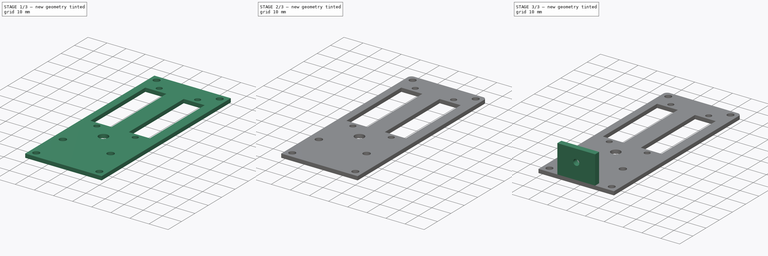
[diagram: build sequence overview — one tinted view per stage of 3, left to right]
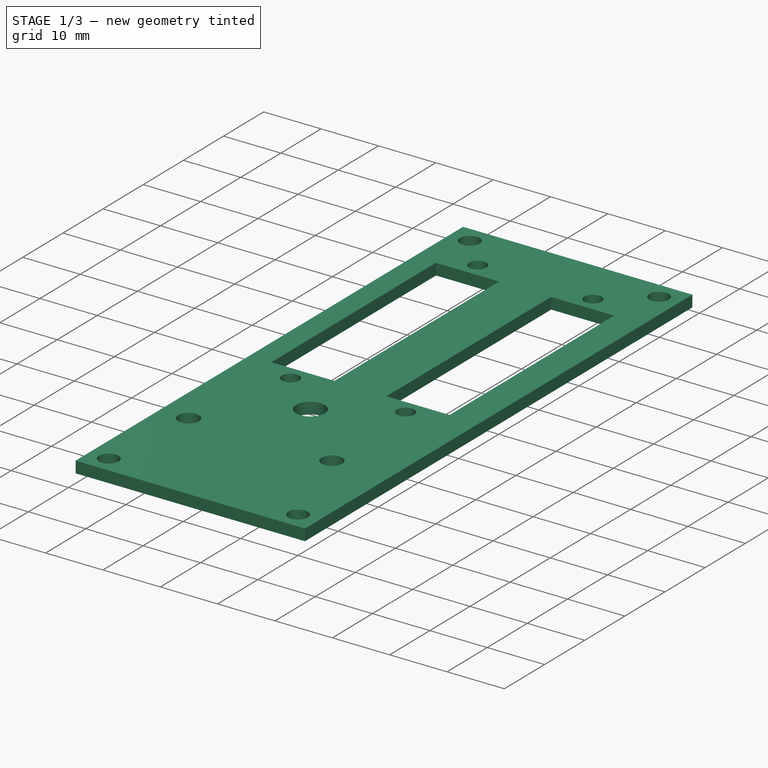
[diagram: stage 1 of 3 — iso view after this stage's code; geometry added in this stage tinted green]
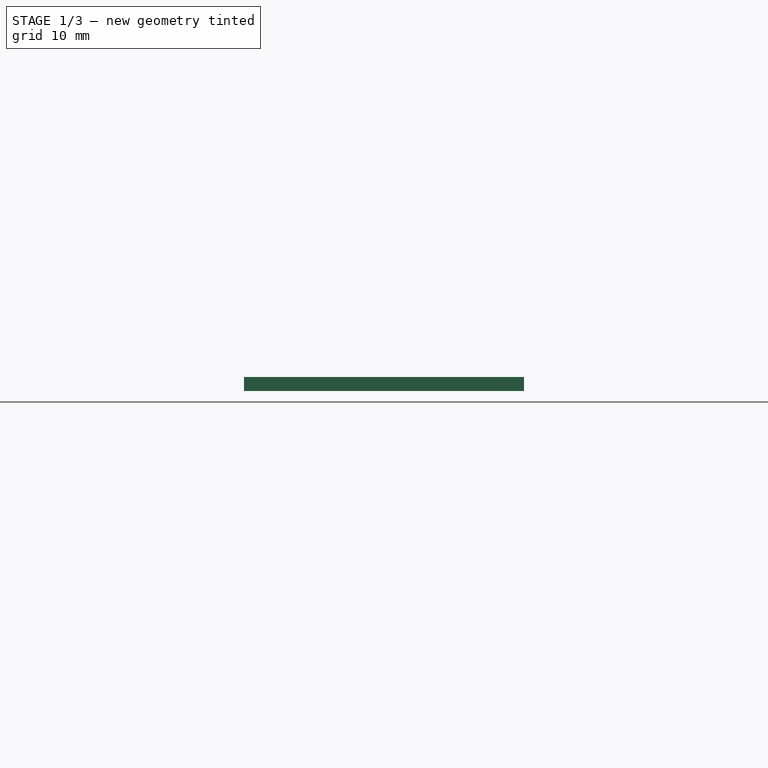
[diagram: stage 1 of 3 — front view after this stage's code; geometry added in this stage tinted green]
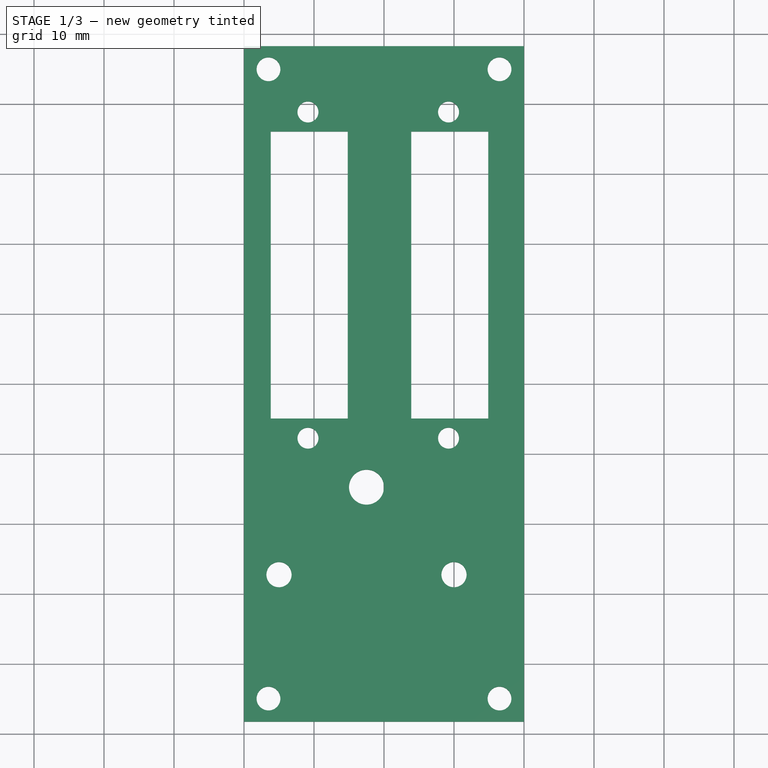
[diagram: stage 1 of 3 — top view after this stage's code; geometry added in this stage tinted green]
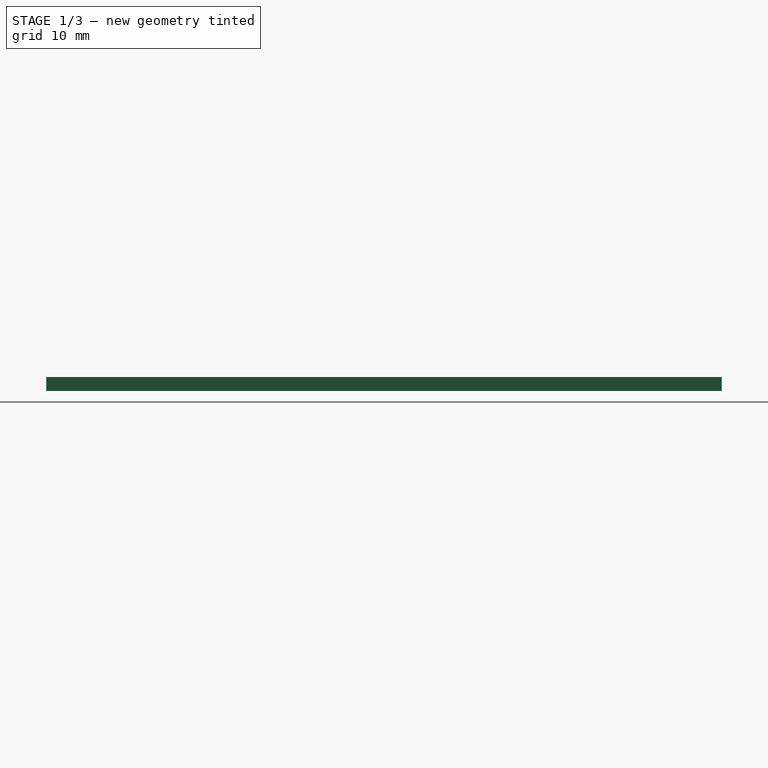
[diagram: stage 1 of 3 — right view after this stage's code; geometry added in this stage tinted green]
FCSTD DOCUMENT  (FreeCAD 0.18.4R)
Label: left_case_2
License: All rights reserved
LicenseURL: http://en.wikipedia.org/wiki/All_rights_reserved
objects: Sketcher::SketchObject×4, PartDesign::Pad×2, PartDesign::Pocket×2, PartDesign::Fillet×2, PartDesign::Body×1
note: 15 computed .brp shape members not serialized (recipe doc carries the construction recipe); baked Part::Feature solids carry a one-line shape summary decoded from their .brp

FEATURE [Sketcher::SketchObject] Sketch
  MapMode = 5
  Support = -> [XY_Plane]
  sketch-geometry (4):
    g0: LineSegment StartX=-20 StartY=48.25 StartZ=0 EndX=20 EndY=48.25 EndZ=0
    g1: LineSegment StartX=20 StartY=48.25 StartZ=0 EndX=20 EndY=-48.25 EndZ=0
    g2: LineSegment StartX=20 StartY=-48.25 StartZ=0 EndX=-20 EndY=-48.25 EndZ=0
    g3: LineSegment StartX=-20 StartY=-48.25 StartZ=0 EndX=-20 EndY=48.25 EndZ=0
  constraints (10):
    c: Coincident(g0,g1)
    c: Coincident(g1,g2)
    c: Coincident(g2,g3)
    c: Coincident(g3,g0)
    c: Horizontal(g2)
    c: Vertical(g1)
    c: DistanceX(g0,g0) = 40
    c: DistanceY(g3,g3) = 96.5
    c: Symmetric(g0,g0,g-2)
    c: Symmetric(g2,g0,g-1)
FEATURE [PartDesign::Pad] Pad
  Length = 2
  Length2 = 100
  Profile = -> Sketch
  Type = 0
FEATURE [Sketcher::SketchObject] Sketch001
  ExternalGeometry = -> [Pad]
  MapMode = 5
  Placement = pos=(0,0,2) rot=(0,0,1;0rad)
  Support = -> [Pad]
  sketch-geometry (19):
    g0: Circle CenterX=-16.5 CenterY=44.95 CenterZ=0 NormalX=0 NormalY=0 NormalZ=1 AngleXU=0 Radius=1.7
    g1: Circle CenterX=16.5 CenterY=44.95 CenterZ=0 NormalX=0 NormalY=0 NormalZ=1 AngleXU=0 Radius=1.7
    g2: Circle CenterX=-16.5 CenterY=-44.95 CenterZ=0 NormalX=0 NormalY=0 NormalZ=1 AngleXU=0 Radius=1.7
    g3: Circle CenterX=16.5 CenterY=-44.95 CenterZ=0 NormalX=0 NormalY=0 NormalZ=1 AngleXU=0 Radius=1.7
    g4: Circle CenterX=-10.86 CenterY=38.85 CenterZ=0 NormalX=0 NormalY=0 NormalZ=1 AngleXU=0 Radius=1.5
    g5: Circle CenterX=-10.86 CenterY=-7.75 CenterZ=0 NormalX=0 NormalY=0 NormalZ=1 AngleXU=0 Radius=1.5
    g6: LineSegment StartX=-16.18 StartY=-4.95 StartZ=0 EndX=-5.18 EndY=-4.95 EndZ=0
    g7: LineSegment StartX=-5.18 StartY=-4.95 StartZ=0 EndX=-5.18 EndY=36.05 EndZ=0
    g8: LineSegment StartX=-5.18 StartY=36.05 StartZ=0 EndX=-16.18 EndY=36.05 EndZ=0
    g9: LineSegment StartX=-16.18 StartY=36.05 StartZ=0 EndX=-16.18 EndY=-4.95 EndZ=0
    g10: Circle CenterX=-2.5 CenterY=-14.75 CenterZ=0 NormalX=0 NormalY=0 NormalZ=1 AngleXU=0 Radius=2.5
    g11: Circle CenterX=-15 CenterY=-27.25 CenterZ=0 NormalX=0 NormalY=0 NormalZ=1 AngleXU=0 Radius=1.8
    g12: Circle CenterX=10 CenterY=-27.25 CenterZ=0 NormalX=0 NormalY=0 NormalZ=1 AngleXU=0 Radius=1.8
    g13: Circle CenterX=9.22033 CenterY=38.85 CenterZ=0 NormalX=0 NormalY=0 NormalZ=1 AngleXU=0 Radius=1.5
    g14: Circle CenterX=9.22033 CenterY=-7.75 CenterZ=0 NormalX=0 NormalY=0 NormalZ=1 AngleXU=0 Radius=1.5
    g15: LineSegment StartX=3.90033 StartY=-4.95 StartZ=0 EndX=14.9003 EndY=-4.95 EndZ=0
    g16: LineSegment StartX=14.9003 StartY=-4.95 StartZ=0 EndX=14.9003 EndY=36.05 EndZ=0
    g17: LineSegment StartX=14.9003 StartY=36.05 StartZ=0 EndX=3.90033 EndY=36.05 EndZ=0
    g18: LineSegment StartX=3.90033 StartY=36.05 StartZ=0 EndX=3.90033 EndY=-4.95 EndZ=0
  constraints (61):
    c: Distance(g0,g-3) = 3.3
    c: Distance(g0,g-4) = 3.5
    c: Radius(g0) = 1.7
    c: Radius(g1) = 1.7
    c: Radius(g3) = 1.7
    c: Radius(g2) = 1.7
    c: Distance(g2,g-4) = 3.5
    c: Distance(g2,g-6) = 3.3
    c: Distance(g3,g-5) = 3.5
    c: Distance(g3,g-6) = 3.3
    c: Distance(g1,g-5) = 3.5
    c: Distance(g-3) = 40
    c: Distance(g-3) = 40
    c: Distance(g1,g-3) = 3.3
    c: Radius(g4) = 1.5
    c: Radius(g5) = 1.5
    c: Coincident(g6,g7)
    c: Coincident(g7,g8)
    c: Coincident(g8,g9)
    c: Coincident(g9,g6)
    c: Horizontal(g6)
    c: DistanceY(g9,g9) = 41
    c: DistanceX(g8,g8) = 11
    c: Equal(g8,g6)
    c: Perpendicular(g9,g8)
    c: Distance(g5,g6) = 2.8
    c: Distance(g10,g-6) = 33.5
    c: Distance(g10,g-4) = 17.5
    c: Radius(g10) = 2.5
    c: Distance(g-3) = 40
    c: Distance(g4,g-3) = 9.4
    c: Distance(g4,g9) = 5.32
    c: Distance(g5,g9) = 5.32
    c: Horizontal(g11,g12)
    c: Radius(g11) = 1.8
    c: Radius(g12) = 1.8
    c: Distance(g11,g-4) = 5
    c: Distance(g11,g12) = 25
    c: Distance(g12,g-6) = 21
    c: Distance(g4,g8) = 2.8
    c: Distance(g5,g4) = 46.6
    c: Distance(g8,g-4) = 3.82
    c: Distance(g-5) = 96.5
    c: Distance(g-5) = 96.5
    c: Equal(g4,g13) = 1.5
    c: Equal(g5,g14) = 1.5
    c: Coincident(g15,g16)
    c: Coincident(g16,g17)
    c: Coincident(g17,g18)
    c: Coincident(g18,g15)
    c: Horizontal(g15)
    c: Equal(g9,g18) = 41
    c: Equal(g8,g17) = 11
    c: Equal(g17,g15)
    c: Perpendicular(g18,g17)
    c: Distance(g14,g15) = 2.8
    c: Distance(g13,g18) = 5.32
    c: Distance(g14,g18) = 5.32
    c: Distance(g13,g17) = 2.8
    c: Distance(g14,g13) = 46.6
    c: Distance(g13,g-3) = 9.4
FEATURE [PartDesign::Pocket] Pocket
  BaseFeature = -> Pad
  Length = 5
  Length2 = 100
  Profile = -> Sketch001
  Type = 0
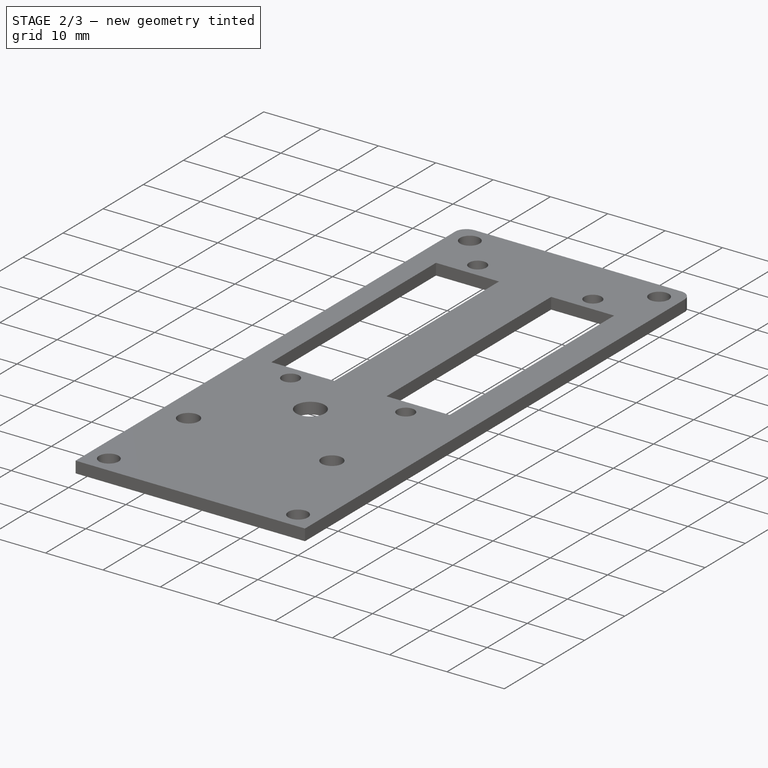
[diagram: stage 2 of 3 — iso view after this stage's code; geometry added in this stage tinted green]
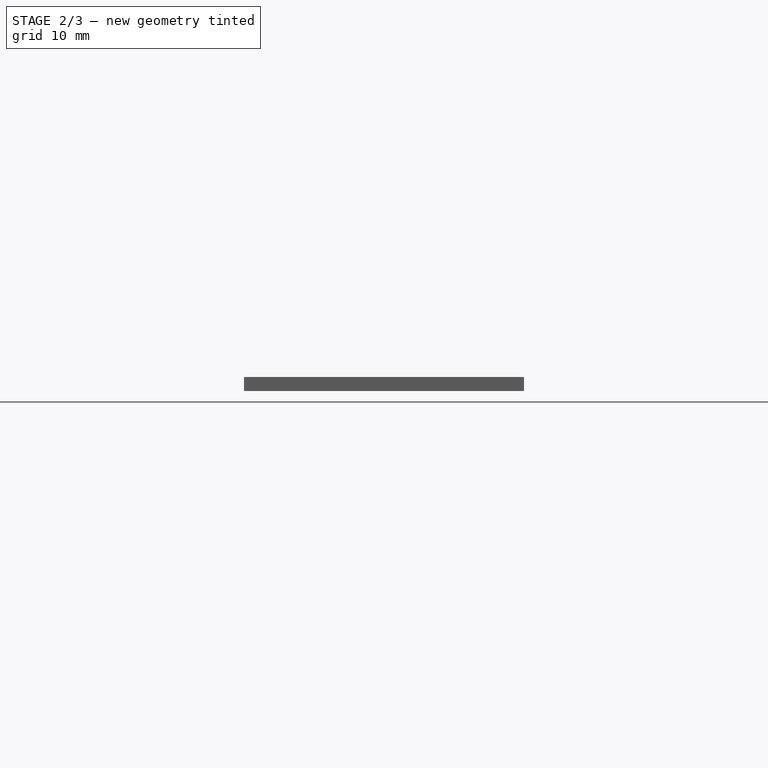
[diagram: stage 2 of 3 — front view after this stage's code; geometry added in this stage tinted green]
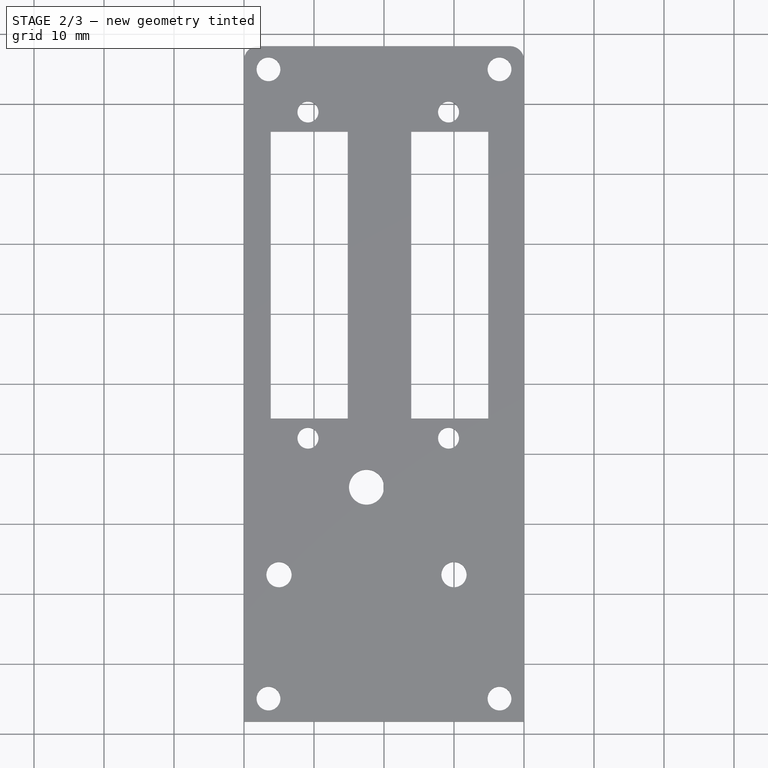
[diagram: stage 2 of 3 — top view after this stage's code; geometry added in this stage tinted green]
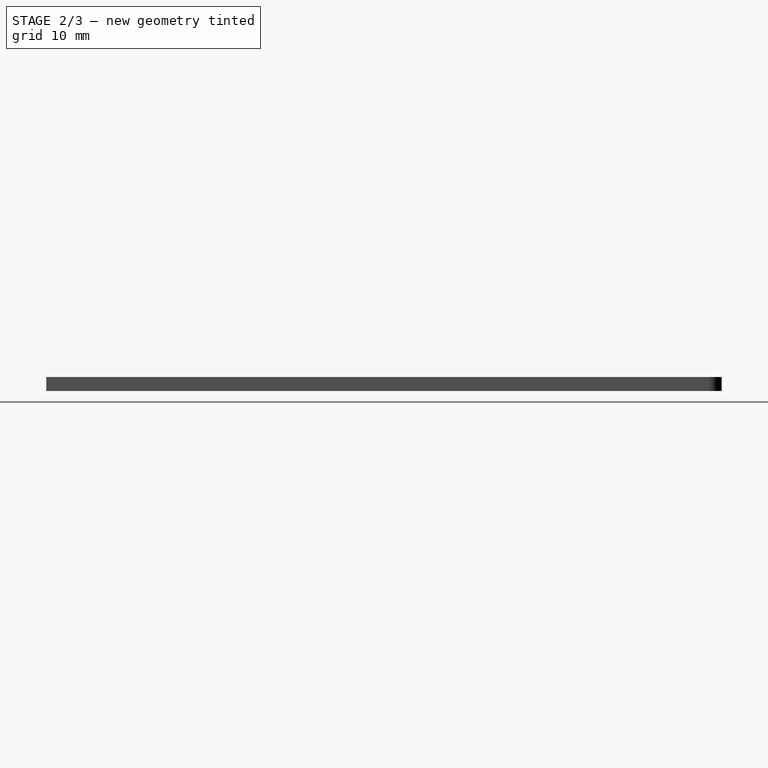
[diagram: stage 2 of 3 — right view after this stage's code; geometry added in this stage tinted green]
FEATURE [PartDesign::Fillet] Fillet
  Base = -> Pocket [Edge1]
  BaseFeature = -> Pocket
  Radius = 2
FEATURE [PartDesign::Fillet] Fillet001
  Base = -> Fillet [Edge3]
  BaseFeature = -> Fillet
  Radius = 2
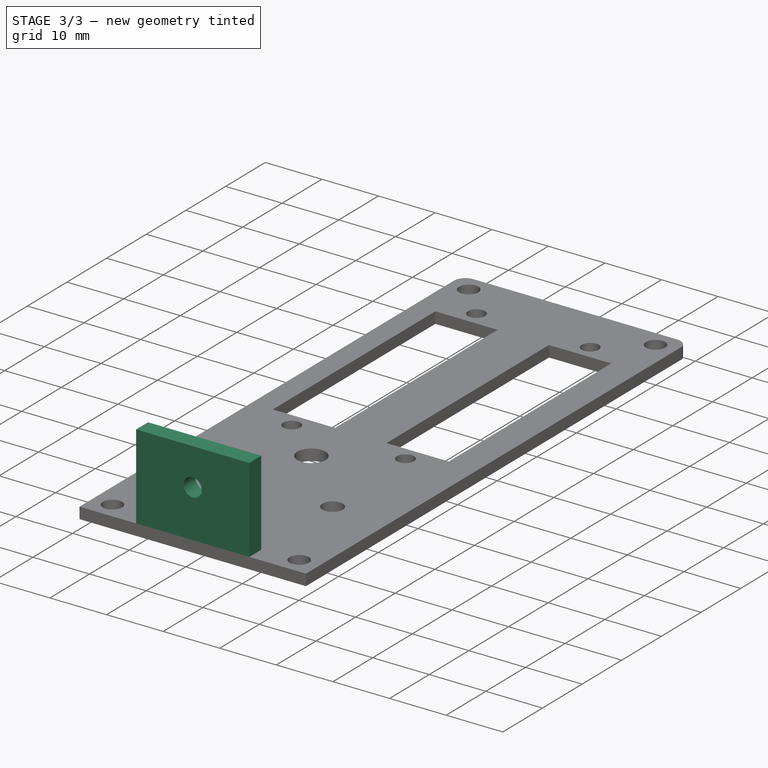
[diagram: stage 3 of 3 — iso view after this stage's code; geometry added in this stage tinted green]
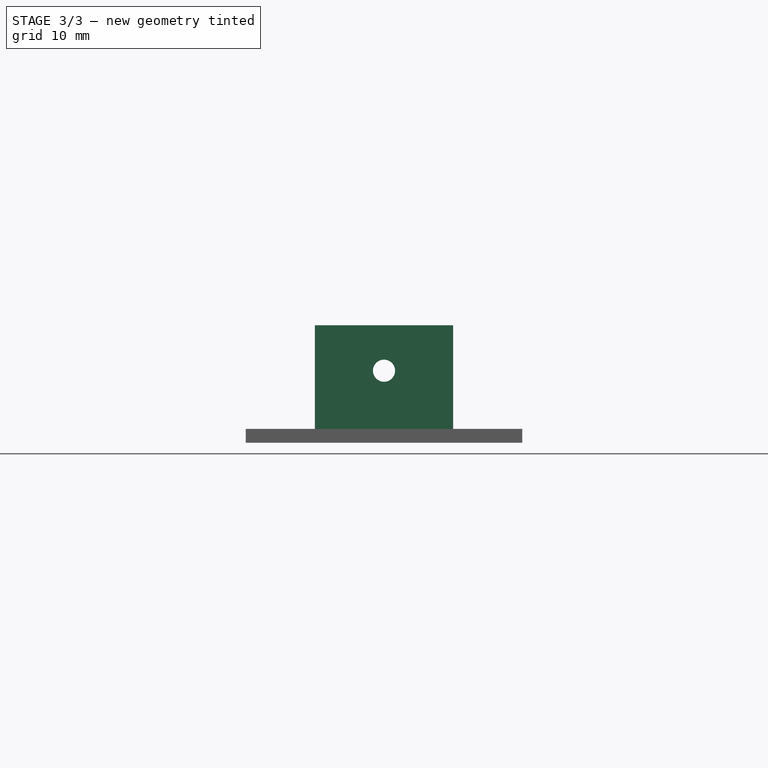
[diagram: stage 3 of 3 — front view after this stage's code; geometry added in this stage tinted green]
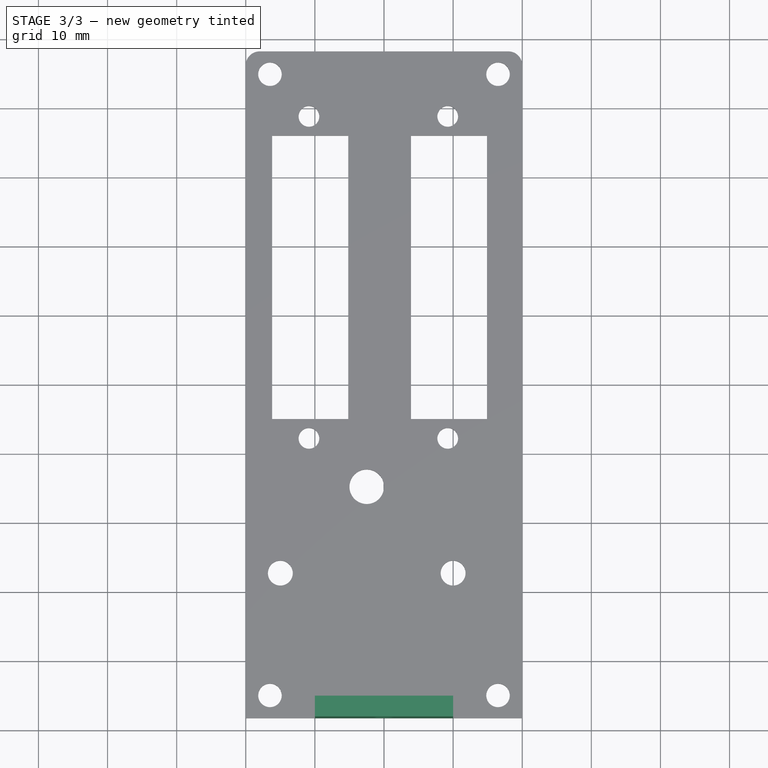
[diagram: stage 3 of 3 — top view after this stage's code; geometry added in this stage tinted green]
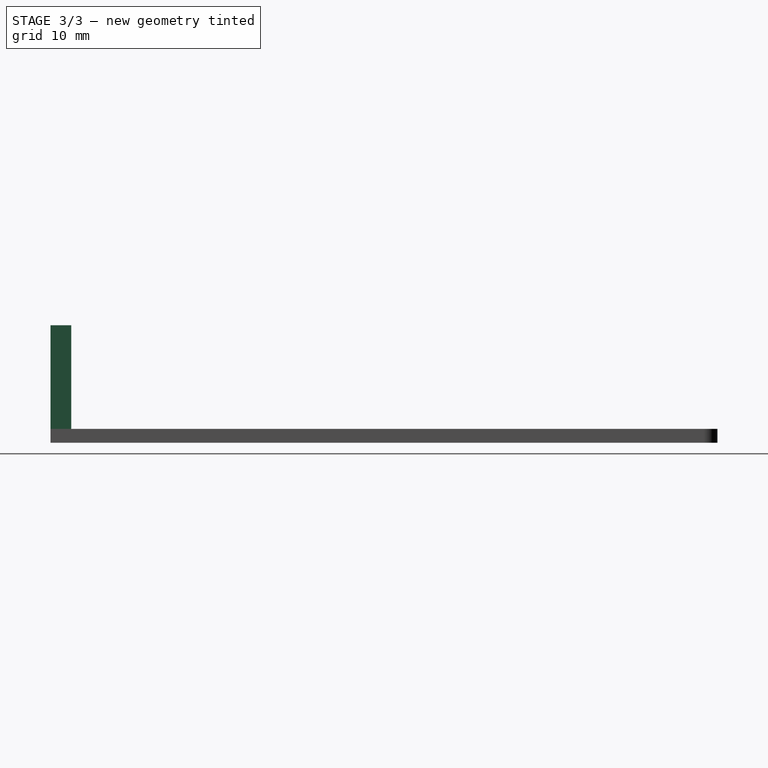
[diagram: stage 3 of 3 — right view after this stage's code; geometry added in this stage tinted green]
FEATURE [Sketcher::SketchObject] Sketch004
  MapMode = 5
  Placement = pos=(0,0,2) rot=(0,0,1;0rad)
  sketch-geometry (4):
    g0: LineSegment StartX=-10 StartY=-48.25 StartZ=0 EndX=10 EndY=-48.25 EndZ=0
    g1: LineSegment StartX=10 StartY=-48.25 StartZ=0 EndX=10 EndY=-45.25 EndZ=0
    g2: LineSegment StartX=10 StartY=-45.25 StartZ=0 EndX=-10 EndY=-45.25 EndZ=0
    g3: LineSegment StartX=-10 StartY=-45.25 StartZ=0 EndX=-10 EndY=-48.25 EndZ=0
  constraints (10):
    c: Coincident(g0,g1)
    c: Coincident(g1,g2)
    c: Coincident(g2,g3)
    c: Coincident(g3,g0)
    c: Horizontal(g2)
    c: Vertical(g1)
    c: Vertical(g3)
    c: Symmetric(g0,g0,g-2)
    c: DistanceX(g2,g2) = 20
    c: DistanceY(g3,g3) = 3
FEATURE [PartDesign::Pad] Pad002
  BaseFeature = -> Fillet001
  Length = 15
  Length2 = 100
  Profile = -> Sketch004
  Type = 0
FEATURE [Sketcher::SketchObject] Sketch005
  ExternalGeometry = -> [Pad002]
  MapMode = 5
  Placement = pos=(0,-48.25,0) rot=(1,0,0;1.5708rad)
  Support = -> [Pad002]
  sketch-geometry (1):
    g0: Circle CenterX=0 CenterY=10.4207 CenterZ=0 NormalX=0 NormalY=0 NormalZ=1 AngleXU=0 Radius=1.6
  constraints (2):
    c: PointOnObject(g0,g-2)
    c: Radius(g0) = 1.6
FEATURE [PartDesign::Pocket] Pocket002
  BaseFeature = -> Pad002
  Length = 5
  Length2 = 100
  Profile = -> Sketch005
  Type = 0
FEATURE [PartDesign::Body] Body
  Group = -> [Sketch,Pad,Sketch001,Pocket,Fillet,Fillet001,Sketch004,Pad002,Sketch005,Pocket002]
  Origin = -> Origin
  Tip = -> Pocket002
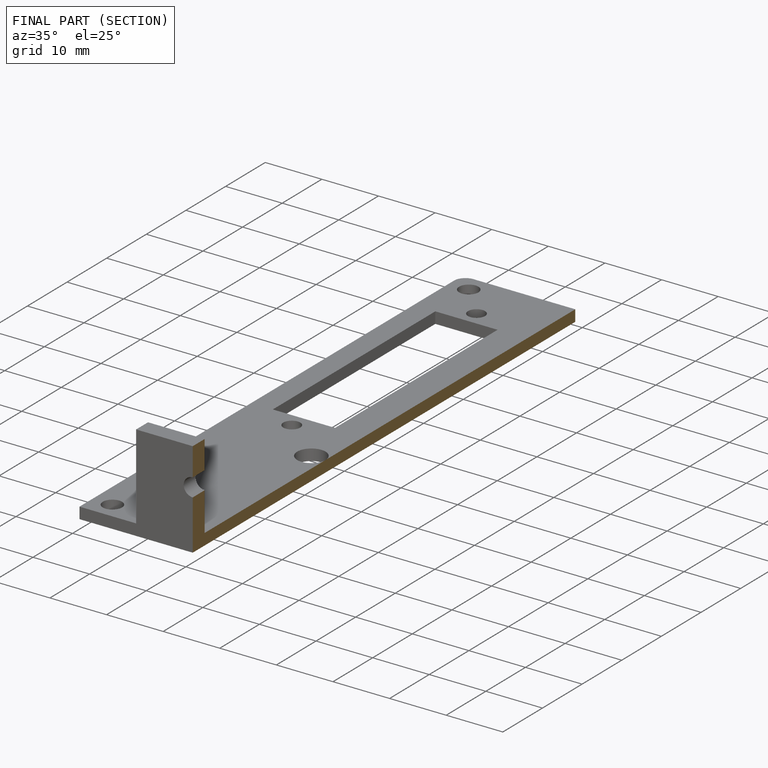
[diagram: finished part — half-section view (interior)]
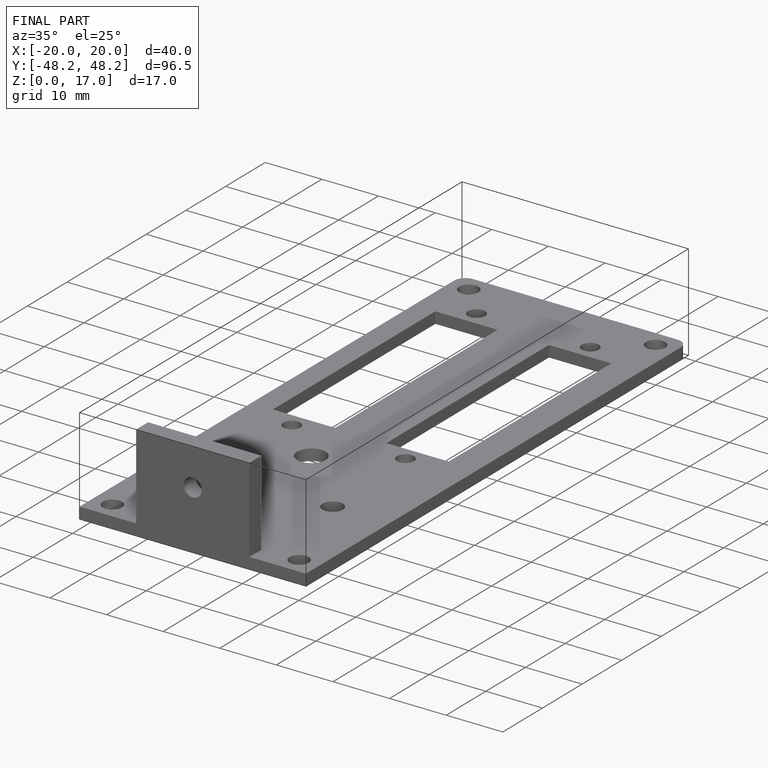
[diagram: finished part — iso view with bounding-box wireframe]
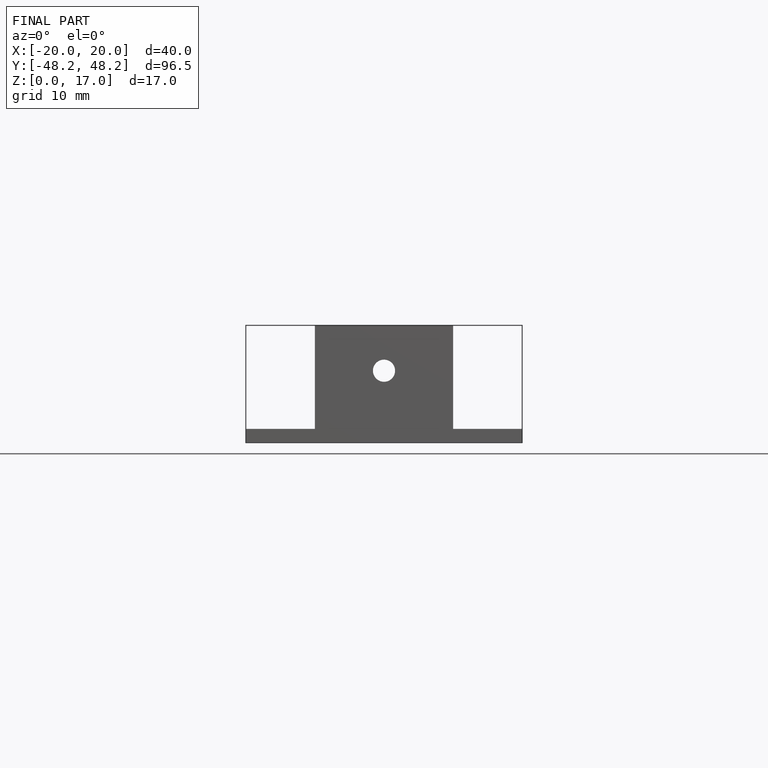
[diagram: finished part — front view with bounding-box wireframe]
